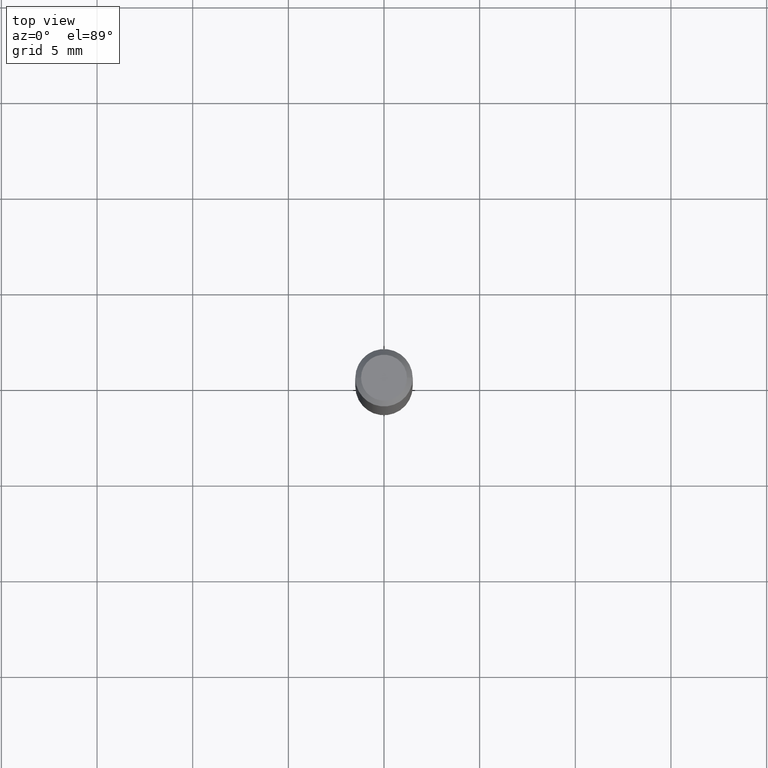
[diagram: clean part render]
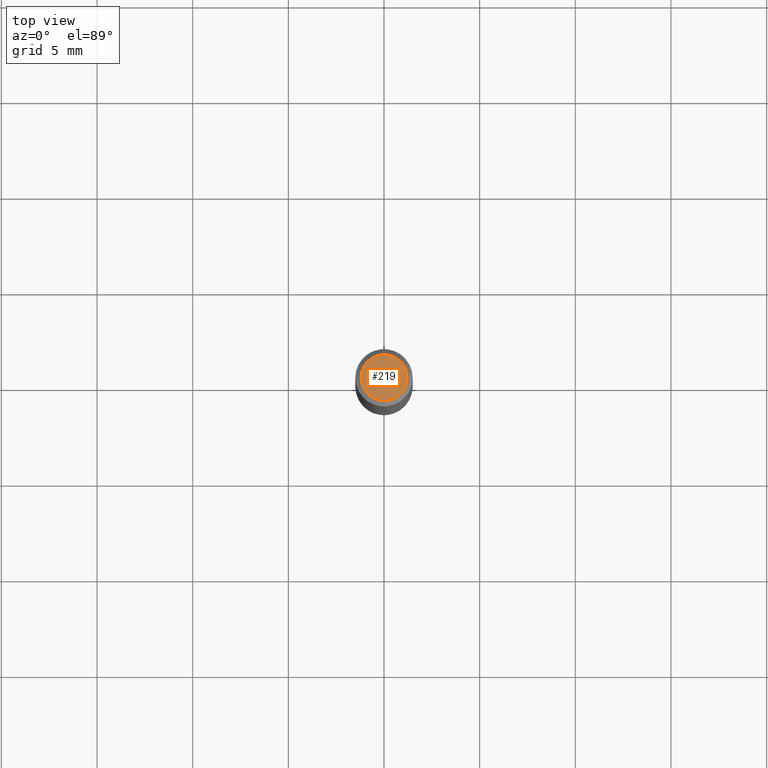
[diagram: same view with one face highlighted and labeled with its STEP entity id]
A machine part, top view. The second image highlights one B-rep face of the part: STEP entity #219.
In plain terms, the highlighted planar face has unit normal (0, -0, -1).
Its self-contained STEP definition (entity closure, byte-faithful):
#8 = EDGE_LOOP ( 'NONE', ( #323, #396 ) ) ;
#29 = CARTESIAN_POINT ( 'NONE',  ( 8.265746106709734507E-48, -1.180129479067563789E-33, -3.380025165646692144E-19 ) ) ;
#44 = DIRECTION ( 'NONE',  ( 1.000000000000000000, -6.982962677686266711E-15, 4.876185090822587894E-29 ) ) ;
#86 = CIRCLE ( 'NONE', #488, 0.04724000000000000421 ) ;
#99 = CARTESIAN_POINT ( 'NONE',  ( 4.132873053354867254E-48, -5.900647395337818946E-34, -1.690012582823346072E-19 ) ) ;
#115 = CIRCLE ( 'NONE', #379, 0.04724000000000000421 ) ;
#158 = EDGE_CURVE ( 'NONE', #351, #478, #115, .T. ) ;
#219 = ADVANCED_FACE ( 'NONE', ( #365 ), #230, .F. ) ;
#223 = EDGE_CURVE ( 'NONE', #478, #351, #86, .T. ) ;
#229 = CARTESIAN_POINT ( 'NONE',  ( -0.04724000000000000421, 3.504923541997677355E-16, -3.380025165670481712E-19 ) ) ;
#230 = PLANE ( 'NONE',  #283 ) ;
#234 = DIRECTION ( 'NONE',  ( -2.445468806185136597E-29, 3.491481338843145583E-15, 1.000000000000000000 ) ) ;
#258 = DIRECTION ( 'NONE',  ( -1.000000000000000000, 6.982962677686265922E-15, -4.876176775795935793E-29 ) ) ;
#283 = AXIS2_PLACEMENT_3D ( 'NONE', #99, #368, #258 ) ;
#312 = CARTESIAN_POINT ( 'NONE',  ( 0.04724000000000000421, -3.852183633974369345E-16, -3.380025165621689721E-19 ) ) ;
#323 = ORIENTED_EDGE ( 'NONE', *, *, #158, .T. ) ;
#351 = VERTEX_POINT ( 'NONE', #229 ) ;
#365 = FACE_OUTER_BOUND ( 'NONE', #8, .T. ) ;
#368 = DIRECTION ( 'NONE',  ( 2.438088387897960049E-29, -3.491481338843145188E-15, -1.000000000000000000 ) ) ;
#373 = DIRECTION ( 'NONE',  ( 1.000000000000000000, -6.982962677686266711E-15, 4.876185090822587894E-29 ) ) ;
#379 = AXIS2_PLACEMENT_3D ( 'NONE', #434, #387, #44 ) ;
#387 = DIRECTION ( 'NONE',  ( -2.445468806185136597E-29, 3.491481338843145583E-15, 1.000000000000000000 ) ) ;
#396 = ORIENTED_EDGE ( 'NONE', *, *, #223, .T. ) ;
#434 = CARTESIAN_POINT ( 'NONE',  ( 8.265746106709734507E-48, -1.180129479067563789E-33, -3.380025165646692144E-19 ) ) ;
#478 = VERTEX_POINT ( 'NONE', #312 ) ;
#488 = AXIS2_PLACEMENT_3D ( 'NONE', #29, #234, #373 ) ;